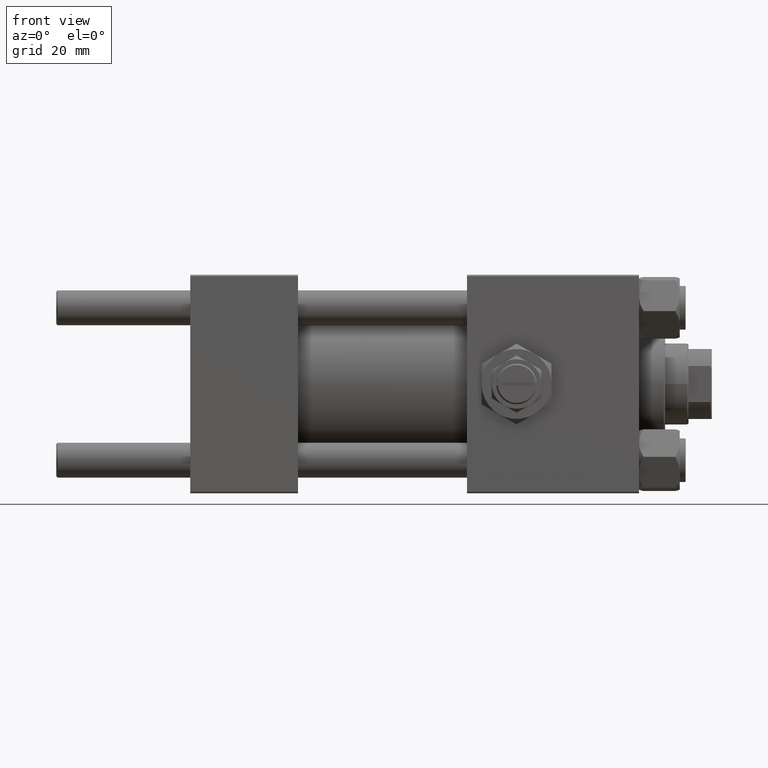
[diagram: clean part render]
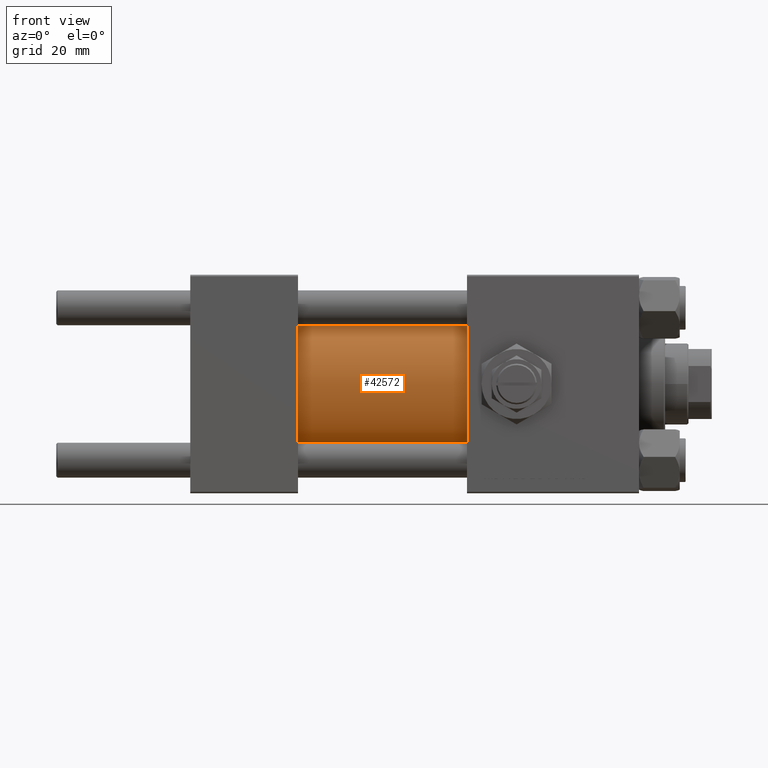
[diagram: same view with one face highlighted and labeled with its STEP entity id]
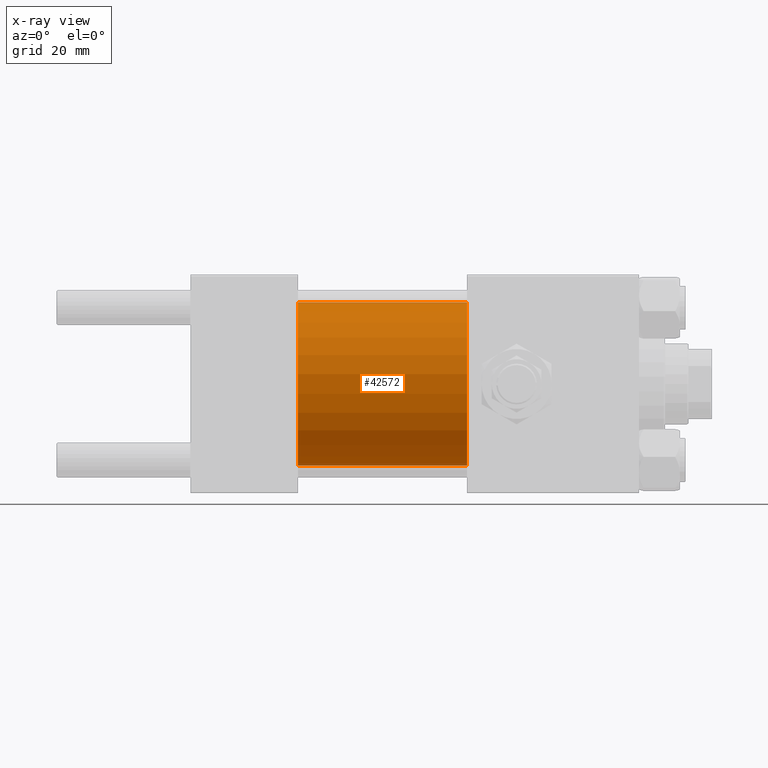
[diagram: x-ray of the same camera — body ghosted, the highlighted face saturated]
A machine part, front view. The second image highlights one B-rep face of the part: STEP entity #42572.
The next image is the same camera in x-ray: the body ghosted, the highlighted face saturated — about 2% of this face is hidden behind the body in this view.
In plain terms, the highlighted cylindrical surface (partial cylindrical patch) has radius 28 mm, axis along (-1, -0, -0).
Its self-contained STEP definition (entity closure, byte-faithful):
#1385 = VERTEX_POINT ( 'NONE', #12959 ) ;
#1445 = VERTEX_POINT ( 'NONE', #20292 ) ;
#3430 = DIRECTION ( 'NONE',  ( -1.000000000000000000, -0.000000000000000000, -0.000000000000000000 ) ) ;
#5804 = AXIS2_PLACEMENT_3D ( 'NONE', #25227, #28899, #33082 ) ;
#7204 = VERTEX_POINT ( 'NONE', #46160 ) ;
#9308 = EDGE_LOOP ( 'NONE', ( #42084, #32516, #11812, #42402 ) ) ;
#11514 = FACE_OUTER_BOUND ( 'NONE', #9308, .T. ) ;
#11812 = ORIENTED_EDGE ( 'NONE', *, *, #24420, .T. ) ;
#11925 = EDGE_CURVE ( 'NONE', #7204, #1385, #36496, .T. ) ;
#12959 = CARTESIAN_POINT ( 'NONE',  ( 37.00000000000000000, 3.429011037612588487E-15, -28.00000000000000000 ) ) ;
#14232 = AXIS2_PLACEMENT_3D ( 'NONE', #35766, #15876, #30105 ) ;
#14880 = AXIS2_PLACEMENT_3D ( 'NONE', #26710, #38241, #23011 ) ;
#15876 = DIRECTION ( 'NONE',  ( 1.000000000000000000, 0.000000000000000000, 0.000000000000000000 ) ) ;
#19480 = DIRECTION ( 'NONE',  ( -1.000000000000000000, -0.000000000000000000, -0.000000000000000000 ) ) ;
#20260 = CARTESIAN_POINT ( 'NONE',  ( 95.00000000000000000, 3.429011037612588487E-15, -28.00000000000000000 ) ) ;
#20292 = CARTESIAN_POINT ( 'NONE',  ( 37.00000000000000000, 0.000000000000000000, 28.00000000000000000 ) ) ;
#21805 = EDGE_CURVE ( 'NONE', #51194, #7204, #33432, .T. ) ;
#23011 = DIRECTION ( 'NONE',  ( 0.000000000000000000, 0.000000000000000000, 1.000000000000000000 ) ) ;
#24420 = EDGE_CURVE ( 'NONE', #51194, #1445, #38757, .T. ) ;
#25026 = CIRCLE ( 'NONE', #5804, 28.00000000000000000 ) ;
#25227 = CARTESIAN_POINT ( 'NONE',  ( 37.00000000000000000, 0.000000000000000000, 0.000000000000000000 ) ) ;
#26710 = CARTESIAN_POINT ( 'NONE',  ( 95.00000000000000000, 0.000000000000000000, 0.000000000000000000 ) ) ;
#28899 = DIRECTION ( 'NONE',  ( 1.000000000000000000, -0.000000000000000000, 0.000000000000000000 ) ) ;
#29204 = VECTOR ( 'NONE', #3430, 1000.000000000000000 ) ;
#30105 = DIRECTION ( 'NONE',  ( 0.000000000000000000, 0.000000000000000000, -1.000000000000000000 ) ) ;
#32516 = ORIENTED_EDGE ( 'NONE', *, *, #21805, .F. ) ;
#33082 = DIRECTION ( 'NONE',  ( 0.000000000000000000, 0.000000000000000000, 1.000000000000000000 ) ) ;
#33432 = CIRCLE ( 'NONE', #14232, 28.00000000000000000 ) ;
#35766 = CARTESIAN_POINT ( 'NONE',  ( 95.00000000000000000, 0.000000000000000000, 0.000000000000000000 ) ) ;
#36496 = LINE ( 'NONE', #20260, #38871 ) ;
#38241 = DIRECTION ( 'NONE',  ( -1.000000000000000000, -0.000000000000000000, -0.000000000000000000 ) ) ;
#38757 = LINE ( 'NONE', #39005, #29204 ) ;
#38871 = VECTOR ( 'NONE', #19480, 1000.000000000000000 ) ;
#39005 = CARTESIAN_POINT ( 'NONE',  ( 95.00000000000000000, 0.000000000000000000, 28.00000000000000000 ) ) ;
#42084 = ORIENTED_EDGE ( 'NONE', *, *, #11925, .F. ) ;
#42402 = ORIENTED_EDGE ( 'NONE', *, *, #46135, .T. ) ;
#42572 = ADVANCED_FACE ( 'NONE', ( #11514 ), #50763, .T. ) ;
#46135 = EDGE_CURVE ( 'NONE', #1445, #1385, #25026, .T. ) ;
#46160 = CARTESIAN_POINT ( 'NONE',  ( 95.00000000000000000, 3.429011037612588487E-15, -28.00000000000000000 ) ) ;
#47740 = CARTESIAN_POINT ( 'NONE',  ( 95.00000000000000000, 0.000000000000000000, 28.00000000000000000 ) ) ;
#50763 = CYLINDRICAL_SURFACE ( 'NONE', #14880, 28.00000000000000000 ) ;
#51194 = VERTEX_POINT ( 'NONE', #47740 ) ;